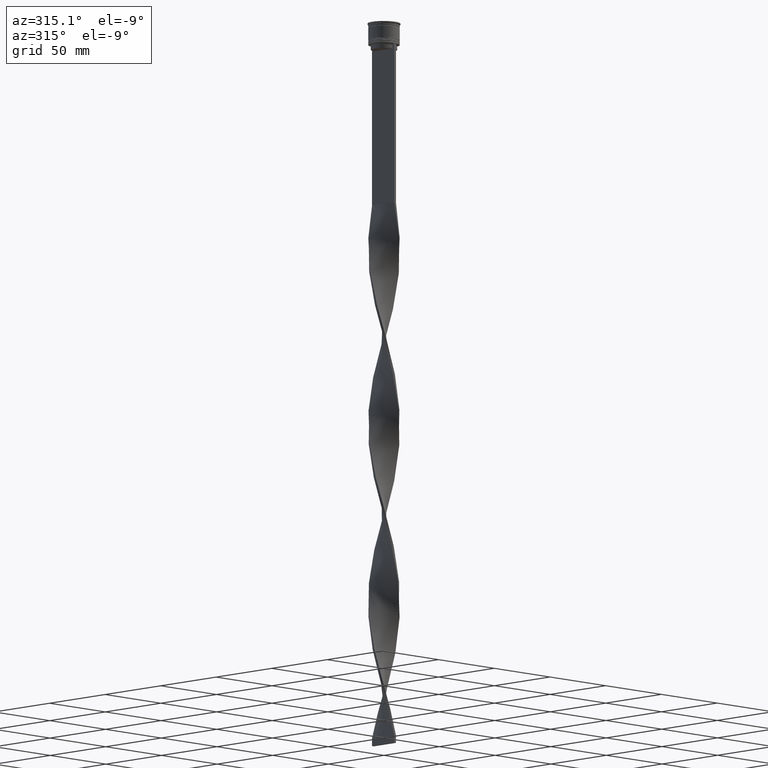
[diagram: clean part render]
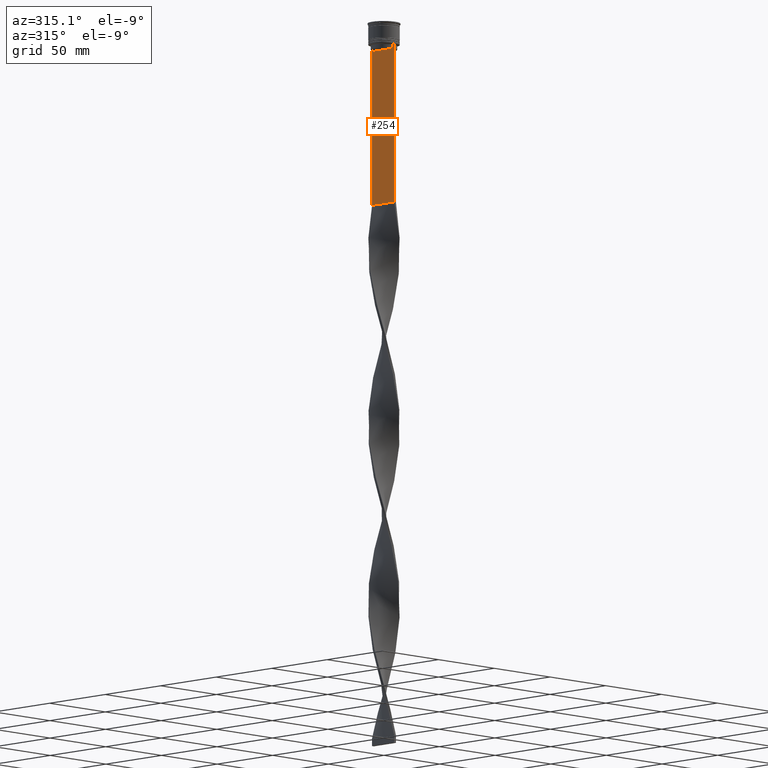
[diagram: same view with one face highlighted and labeled with its STEP entity id]
A machine part, auxiliary view. The second image highlights one B-rep face of the part: STEP entity #254.
In plain terms, the highlighted planar face has unit normal (-1, 0, 0).
Its self-contained STEP definition (entity closure, byte-faithful):
#70 = ORIENTED_EDGE ( 'NONE', *, *, #1877, .F. ) ;
#82 = VERTEX_POINT ( 'NONE', #2514 ) ;
#113 = VECTOR ( 'NONE', #3395, 1000.000000000000000 ) ;
#234 = AXIS2_PLACEMENT_3D ( 'NONE', #1716, #2419, #706 ) ;
#254 = ADVANCED_FACE ( 'NONE', ( #3791 ), #3433, .T. ) ;
#298 = VERTEX_POINT ( 'NONE', #836 ) ;
#321 = VECTOR ( 'NONE', #509, 1000.000000000000000 ) ;
#338 = ORIENTED_EDGE ( 'NONE', *, *, #4238, .F. ) ;
#377 = ORIENTED_EDGE ( 'NONE', *, *, #2432, .F. ) ;
#421 = ORIENTED_EDGE ( 'NONE', *, *, #996, .F. ) ;
#429 = EDGE_CURVE ( 'NONE', #82, #1275, #791, .T. ) ;
#431 = DIRECTION ( 'NONE',  ( 0.000000000000000000, 1.000000000000000000, 0.000000000000000000 ) ) ;
#499 = CARTESIAN_POINT ( 'NONE',  ( -0.7499999999999997780, 8.868342573446296839, -14.00000000000000178 ) ) ;
#509 = DIRECTION ( 'NONE',  ( 0.000000000000000000, -1.000000000000000000, 0.000000000000000000 ) ) ;
#530 = DIRECTION ( 'NONE',  ( 0.000000000000000000, -1.000000000000000000, 0.000000000000000000 ) ) ;
#639 = ORIENTED_EDGE ( 'NONE', *, *, #2711, .F. ) ;
#706 = DIRECTION ( 'NONE',  ( 0.000000000000000000, 0.000000000000000000, 1.000000000000000000 ) ) ;
#720 = DIRECTION ( 'NONE',  ( 0.000000000000000000, 0.000000000000000000, -1.000000000000000000 ) ) ;
#786 = CARTESIAN_POINT ( 'NONE',  ( -0.7499999999999997780, -10.00000000000000533, -14.00000000000000178 ) ) ;
#791 = LINE ( 'NONE', #3612, #4248 ) ;
#807 = EDGE_CURVE ( 'NONE', #2276, #4130, #2455, .T. ) ;
#836 = CARTESIAN_POINT ( 'NONE',  ( -0.7499999999999997780, -9.871550030263740894, -14.00000000000000178 ) ) ;
#843 = VERTEX_POINT ( 'NONE', #1403 ) ;
#996 = EDGE_CURVE ( 'NONE', #298, #2150, #3543, .T. ) ;
#1023 = CARTESIAN_POINT ( 'NONE',  ( -0.7499999999999997780, 8.366450860430608927, -17.00000000000000000 ) ) ;
#1067 = VERTEX_POINT ( 'NONE', #499 ) ;
#1097 = CARTESIAN_POINT ( 'NONE',  ( -0.7499999999999997780, 8.400000000000003908, -17.00000000000000000 ) ) ;
#1164 = VERTEX_POINT ( 'NONE', #4307 ) ;
#1201 = ORIENTED_EDGE ( 'NONE', *, *, #2645, .T. ) ;
#1219 = EDGE_CURVE ( 'NONE', #4130, #2362, #1923, .T. ) ;
#1275 = VERTEX_POINT ( 'NONE', #3514 ) ;
#1301 = B_SPLINE_CURVE_WITH_KNOTS ( 'NONE', 3,
 ( #4071, #3735, #2325, #1960 ),
 .UNSPECIFIED., .F., .F.,
 ( 4, 4 ),
 ( 0.03866293624047253963, 0.03937282246709321309 ),
 .UNSPECIFIED. ) ;
#1403 = CARTESIAN_POINT ( 'NONE',  ( -0.7499999999999998890, -10.00000000000000533, -116.0000000000000000 ) ) ;
#1462 = VECTOR ( 'NONE', #2012, 1000.000000000000000 ) ;
#1528 = EDGE_CURVE ( 'NONE', #2150, #843, #1776, .T. ) ;
#1597 = VECTOR ( 'NONE', #4153, 1000.000000000000000 ) ;
#1635 = CARTESIAN_POINT ( 'NONE',  ( -0.7499999999999997780, 8.868342573446296839, -14.00000000000000178 ) ) ;
#1680 = CARTESIAN_POINT ( 'NONE',  ( -0.7499999999999997780, 8.533766897779926808, -14.33335221373273782 ) ) ;
#1705 = CARTESIAN_POINT ( 'NONE',  ( -0.7499999999999997780, -8.366450860430608927, -14.50000000000000000 ) ) ;
#1716 = CARTESIAN_POINT ( 'NONE',  ( -0.7499999999999997780, -10.00000000000000533, 6.056171120131581098 ) ) ;
#1776 = LINE ( 'NONE', #3441, #1597 ) ;
#1823 = LINE ( 'NONE', #1885, #3054 ) ;
#1843 = LINE ( 'NONE', #3228, #2092 ) ;
#1865 = CARTESIAN_POINT ( 'NONE',  ( -0.7499999999999997780, 8.366450860430608927, -14.50000000000000000 ) ) ;
#1877 = EDGE_CURVE ( 'NONE', #3502, #1886, #1301, .T. ) ;
#1885 = CARTESIAN_POINT ( 'NONE',  ( -0.7499999999999997780, -10.00000000000000533, -116.0000000000000000 ) ) ;
#1886 = VERTEX_POINT ( 'NONE', #2024 ) ;
#1923 = LINE ( 'NONE', #1097, #321 ) ;
#1944 = EDGE_LOOP ( 'NONE', ( #639, #377, #3294, #1201, #3710, #2559, #421, #338, #70, #3821, #4136, #4251 ) ) ;
#1960 = CARTESIAN_POINT ( 'NONE',  ( -0.7499999999999997780, -8.868342573446296839, -14.00000000000000178 ) ) ;
#2012 = DIRECTION ( 'NONE',  ( -0.000000000000000000, -0.000000000000000000, 1.000000000000000000 ) ) ;
#2024 = CARTESIAN_POINT ( 'NONE',  ( -0.7499999999999997780, -8.868342573446296839, -14.00000000000000178 ) ) ;
#2092 = VECTOR ( 'NONE', #3975, 1000.000000000000000 ) ;
#2109 = LINE ( 'NONE', #4126, #113 ) ;
#2150 = VERTEX_POINT ( 'NONE', #2848 ) ;
#2221 = DIRECTION ( 'NONE',  ( 0.000000000000000000, -1.000000000000000000, 0.000000000000000000 ) ) ;
#2276 = VERTEX_POINT ( 'NONE', #1865 ) ;
#2288 = CARTESIAN_POINT ( 'NONE',  ( -0.7499999999999997780, 8.701063075415252257, -14.16668448247791723 ) ) ;
#2325 = CARTESIAN_POINT ( 'NONE',  ( -0.7499999999999997780, -8.701063080777123204, -14.16668447713511547 ) ) ;
#2362 = VERTEX_POINT ( 'NONE', #2773 ) ;
#2419 = DIRECTION ( 'NONE',  ( -1.000000000000000000, 0.000000000000000000, 0.000000000000000000 ) ) ;
#2432 = EDGE_CURVE ( 'NONE', #1275, #1067, #2882, .T. ) ;
#2454 = VECTOR ( 'NONE', #3853, 1000.000000000000000 ) ;
#2455 = LINE ( 'NONE', #3098, #3465 ) ;
#2514 = CARTESIAN_POINT ( 'NONE',  ( -0.7499999999999997780, 9.999999999999998224, -14.00000000000000178 ) ) ;
#2559 = ORIENTED_EDGE ( 'NONE', *, *, #1528, .F. ) ;
#2579 = B_SPLINE_CURVE_WITH_KNOTS ( 'NONE', 3,
 ( #1635, #2288, #1680, #2718 ),
 .UNSPECIFIED., .F., .F.,
 ( 4, 4 ),
 ( 0.01512225952876174867, 0.01583070519299695222 ),
 .UNSPECIFIED. ) ;
#2645 = EDGE_CURVE ( 'NONE', #82, #1164, #1843, .T. ) ;
#2711 = EDGE_CURVE ( 'NONE', #1067, #2276, #2579, .T. ) ;
#2718 = CARTESIAN_POINT ( 'NONE',  ( -0.7499999999999997780, 8.366450860430608927, -14.50000000000000000 ) ) ;
#2748 = VECTOR ( 'NONE', #2221, 1000.000000000000000 ) ;
#2773 = CARTESIAN_POINT ( 'NONE',  ( -0.7499999999999997780, -8.366450860430608927, -17.00000000000000000 ) ) ;
#2848 = CARTESIAN_POINT ( 'NONE',  ( -0.7499999999999997780, -10.00000000000000533, -14.00000000000000178 ) ) ;
#2882 = LINE ( 'NONE', #3210, #2748 ) ;
#3054 = VECTOR ( 'NONE', #431, 1000.000000000000000 ) ;
#3098 = CARTESIAN_POINT ( 'NONE',  ( -0.7499999999999997780, 8.366450860430608927, 0.000000000000000000 ) ) ;
#3210 = CARTESIAN_POINT ( 'NONE',  ( -0.7499999999999997780, -10.00000000000000533, -14.00000000000000178 ) ) ;
#3228 = CARTESIAN_POINT ( 'NONE',  ( -0.7499999999999997780, 9.999999999999998224, 6.056171120131581098 ) ) ;
#3294 = ORIENTED_EDGE ( 'NONE', *, *, #429, .F. ) ;
#3395 = DIRECTION ( 'NONE',  ( 0.000000000000000000, -1.000000000000000000, 0.000000000000000000 ) ) ;
#3433 = PLANE ( 'NONE',  #234 ) ;
#3441 = CARTESIAN_POINT ( 'NONE',  ( -0.7499999999999997780, -10.00000000000000533, 6.056171120131581098 ) ) ;
#3465 = VECTOR ( 'NONE', #720, 1000.000000000000000 ) ;
#3502 = VERTEX_POINT ( 'NONE', #1705 ) ;
#3514 = CARTESIAN_POINT ( 'NONE',  ( -0.7499999999999997780, 9.871550030263740894, -14.00000000000000178 ) ) ;
#3543 = LINE ( 'NONE', #786, #2454 ) ;
#3612 = CARTESIAN_POINT ( 'NONE',  ( -0.7499999999999997780, -10.00000000000000533, -14.00000000000000178 ) ) ;
#3710 = ORIENTED_EDGE ( 'NONE', *, *, #3840, .F. ) ;
#3728 = CARTESIAN_POINT ( 'NONE',  ( -0.7499999999999997780, -8.366450860430608927, 0.000000000000000000 ) ) ;
#3735 = CARTESIAN_POINT ( 'NONE',  ( -0.7499999999999997780, -8.533766903463440912, -14.33335220807192201 ) ) ;
#3791 = FACE_OUTER_BOUND ( 'NONE', #1944, .T. ) ;
#3821 = ORIENTED_EDGE ( 'NONE', *, *, #4318, .F. ) ;
#3840 = EDGE_CURVE ( 'NONE', #843, #1164, #1823, .T. ) ;
#3853 = DIRECTION ( 'NONE',  ( 0.000000000000000000, -1.000000000000000000, 0.000000000000000000 ) ) ;
#3975 = DIRECTION ( 'NONE',  ( 0.000000000000000000, 0.000000000000000000, -1.000000000000000000 ) ) ;
#4071 = CARTESIAN_POINT ( 'NONE',  ( -0.7499999999999997780, -8.366450860430608927, -14.50000000000000000 ) ) ;
#4085 = LINE ( 'NONE', #3728, #1462 ) ;
#4126 = CARTESIAN_POINT ( 'NONE',  ( -0.7499999999999997780, -10.00000000000000533, -14.00000000000000178 ) ) ;
#4130 = VERTEX_POINT ( 'NONE', #1023 ) ;
#4136 = ORIENTED_EDGE ( 'NONE', *, *, #1219, .F. ) ;
#4153 = DIRECTION ( 'NONE',  ( 0.000000000000000000, 0.000000000000000000, -1.000000000000000000 ) ) ;
#4238 = EDGE_CURVE ( 'NONE', #1886, #298, #2109, .T. ) ;
#4248 = VECTOR ( 'NONE', #530, 1000.000000000000000 ) ;
#4251 = ORIENTED_EDGE ( 'NONE', *, *, #807, .F. ) ;
#4307 = CARTESIAN_POINT ( 'NONE',  ( -0.7499999999999997780, 9.999999999999998224, -116.0000000000000000 ) ) ;
#4318 = EDGE_CURVE ( 'NONE', #2362, #3502, #4085, .T. ) ;